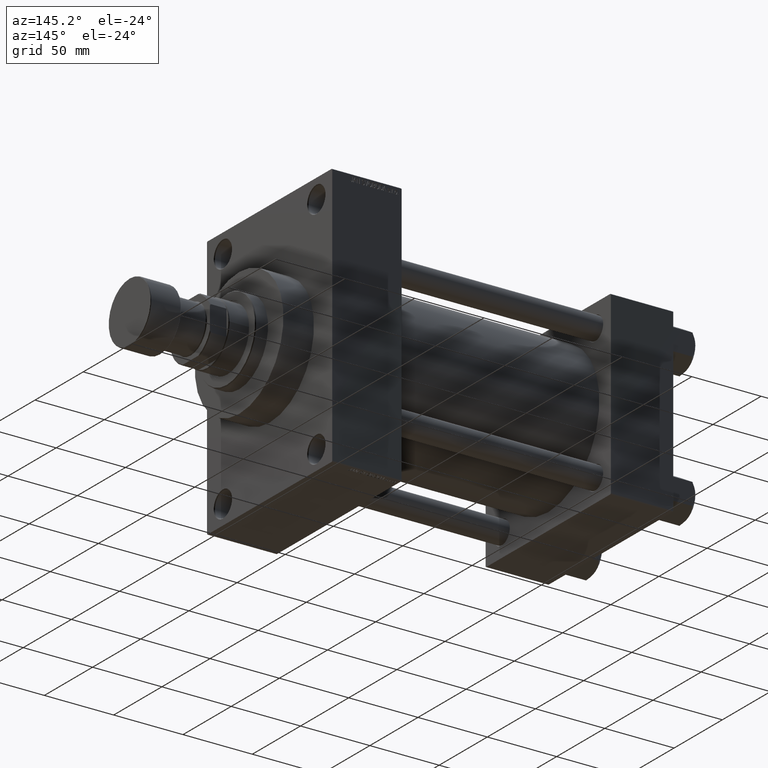
[diagram: clean part render]
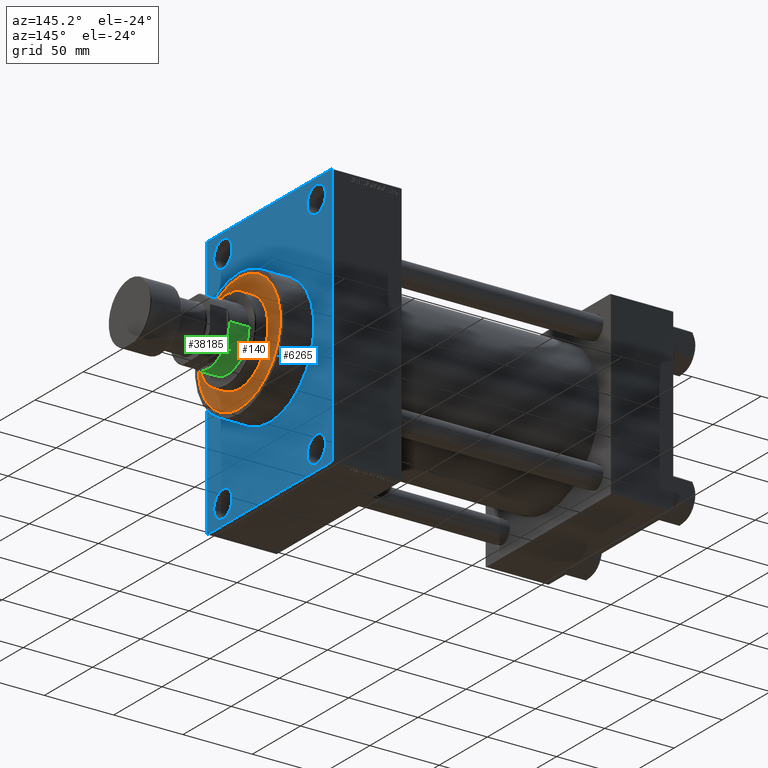
[diagram: same view with three faces highlighted in distinct colors, each labeled with its STEP entity id]
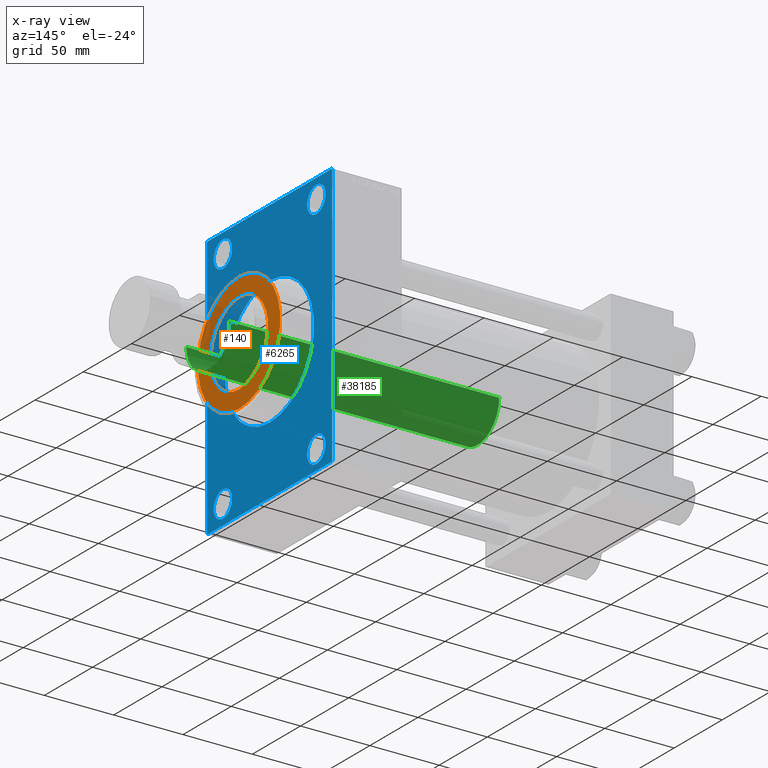
[diagram: x-ray of the same camera — body ghosted, the three highlighted faces saturated]
A machine part, auxiliary view with three faces highlighted in distinct colors.
The next image is the same camera in x-ray (body ghosted, the three faces saturated) — at least one of them is partly hidden behind the body in this view.
Their STEP definitions:

[orange] entity #140 — the highlighted planar face has unit normal (1, 0, 0).
#140 = ADVANCED_FACE ( 'NONE', ( #34800, #42825 ), #24335, .T. ) ;
#451 = CARTESIAN_POINT ( 'NONE',  ( 42.75000000000000000, 5.235365066354935472E-15, 43.25999999999999801 ) ) ;
#665 = EDGE_CURVE ( 'NONE', #20278, #44701, #26721, .T. ) ;
#2467 = VERTEX_POINT ( 'NONE', #41525 ) ;
#2649 = EDGE_LOOP ( 'NONE', ( #38880, #2697 ) ) ;
#2697 = ORIENTED_EDGE ( 'NONE', *, *, #13961, .F. ) ;
#2904 = ORIENTED_EDGE ( 'NONE', *, *, #665, .T. ) ;
#4879 = CIRCLE ( 'NONE', #14228, 42.75000000000000000 ) ;
#8645 = DIRECTION ( 'NONE',  ( 1.000000000000000000, 0.000000000000000000, 0.000000000000000000 ) ) ;
#8814 = CARTESIAN_POINT ( 'NONE',  ( 0.000000000000000000, 0.000000000000000000, 43.25999999999999801 ) ) ;
#9051 = CARTESIAN_POINT ( 'NONE',  ( -42.75000000000000000, 0.000000000000000000, 43.25999999999999801 ) ) ;
#9426 = AXIS2_PLACEMENT_3D ( 'NONE', #8814, #30731, #45554 ) ;
#10864 = DIRECTION ( 'NONE',  ( 1.000000000000000000, 0.000000000000000000, 0.000000000000000000 ) ) ;
#11820 = CARTESIAN_POINT ( 'NONE',  ( -30.00000000000000000, 0.000000000000000000, 43.25999999999999801 ) ) ;
#12683 = DIRECTION ( 'NONE',  ( 1.000000000000000000, 0.000000000000000000, -0.000000000000000000 ) ) ;
#13961 = EDGE_CURVE ( 'NONE', #2467, #24206, #30414, .T. ) ;
#14228 = AXIS2_PLACEMENT_3D ( 'NONE', #35799, #38473, #46018 ) ;
#14825 = EDGE_CURVE ( 'NONE', #24206, #2467, #47513, .T. ) ;
#18260 = EDGE_LOOP ( 'NONE', ( #2904, #19078 ) ) ;
#19078 = ORIENTED_EDGE ( 'NONE', *, *, #20217, .T. ) ;
#20217 = EDGE_CURVE ( 'NONE', #44701, #20278, #4879, .T. ) ;
#20278 = VERTEX_POINT ( 'NONE', #9051 ) ;
#20333 = DIRECTION ( 'NONE',  ( 0.000000000000000000, 0.000000000000000000, 1.000000000000000000 ) ) ;
#24206 = VERTEX_POINT ( 'NONE', #11820 ) ;
#24335 = PLANE ( 'NONE',  #42229 ) ;
#26721 = CIRCLE ( 'NONE', #27488, 42.75000000000000000 ) ;
#27488 = AXIS2_PLACEMENT_3D ( 'NONE', #34434, #20333, #8645 ) ;
#27762 = DIRECTION ( 'NONE',  ( 0.000000000000000000, 0.000000000000000000, 1.000000000000000000 ) ) ;
#29639 = AXIS2_PLACEMENT_3D ( 'NONE', #43480, #48063, #10864 ) ;
#30414 = CIRCLE ( 'NONE', #9426, 30.00000000000000000 ) ;
#30731 = DIRECTION ( 'NONE',  ( 0.000000000000000000, 0.000000000000000000, 1.000000000000000000 ) ) ;
#31166 = CARTESIAN_POINT ( 'NONE',  ( 0.000000000000000000, 0.000000000000000000, 43.25999999999999801 ) ) ;
#34434 = CARTESIAN_POINT ( 'NONE',  ( 0.000000000000000000, 0.000000000000000000, 43.25999999999999801 ) ) ;
#34800 = FACE_BOUND ( 'NONE', #2649, .T. ) ;
#35799 = CARTESIAN_POINT ( 'NONE',  ( 0.000000000000000000, 0.000000000000000000, 43.25999999999999801 ) ) ;
#38473 = DIRECTION ( 'NONE',  ( 0.000000000000000000, 0.000000000000000000, 1.000000000000000000 ) ) ;
#38880 = ORIENTED_EDGE ( 'NONE', *, *, #14825, .F. ) ;
#41525 = CARTESIAN_POINT ( 'NONE',  ( 30.00000000000000000, 3.673940397442059178E-15, 43.25999999999999801 ) ) ;
#42229 = AXIS2_PLACEMENT_3D ( 'NONE', #31166, #27762, #12683 ) ;
#42825 = FACE_OUTER_BOUND ( 'NONE', #18260, .T. ) ;
#43480 = CARTESIAN_POINT ( 'NONE',  ( 0.000000000000000000, 0.000000000000000000, 43.25999999999999801 ) ) ;
#44701 = VERTEX_POINT ( 'NONE', #451 ) ;
#45554 = DIRECTION ( 'NONE',  ( 1.000000000000000000, 0.000000000000000000, 0.000000000000000000 ) ) ;
#46018 = DIRECTION ( 'NONE',  ( 1.000000000000000000, 0.000000000000000000, 0.000000000000000000 ) ) ;
#47513 = CIRCLE ( 'NONE', #29639, 30.00000000000000000 ) ;
#48063 = DIRECTION ( 'NONE',  ( 0.000000000000000000, 0.000000000000000000, 1.000000000000000000 ) ) ;

[blue] entity #6265 — the highlighted planar face has unit normal (-1, 0, 0).
#283 = CIRCLE ( 'NONE', #34439, 46.00000000000000000 ) ;
#961 = DIRECTION ( 'NONE',  ( -1.000000000000000000, -0.000000000000000000, -0.000000000000000000 ) ) ;
#1036 = LINE ( 'NONE', #8320, #22680 ) ;
#1124 = AXIS2_PLACEMENT_3D ( 'NONE', #15366, #14883, #23380 ) ;
#1202 = VERTEX_POINT ( 'NONE', #1255 ) ;
#1252 = ORIENTED_EDGE ( 'NONE', *, *, #33177, .T. ) ;
#1255 = CARTESIAN_POINT ( 'NONE',  ( 246.0000000000000000, 48.50000000000000000, -90.49999999999998579 ) ) ;
#1751 = CARTESIAN_POINT ( 'NONE',  ( 246.0000000000000000, 48.50000000000000000, 81.00000000000000000 ) ) ;
#1987 = VERTEX_POINT ( 'NONE', #38697 ) ;
#2134 = CARTESIAN_POINT ( 'NONE',  ( 246.0000000000000000, -48.50000000000000000, 81.00000000000000000 ) ) ;
#2202 = LINE ( 'NONE', #46454, #20370 ) ;
#2629 = CIRCLE ( 'NONE', #9599, 46.00000000000000000 ) ;
#3124 = ORIENTED_EDGE ( 'NONE', *, *, #20820, .T. ) ;
#3354 = ORIENTED_EDGE ( 'NONE', *, *, #31611, .T. ) ;
#3499 = CARTESIAN_POINT ( 'NONE',  ( 246.0000000000000000, -65.00000000000000000, 94.49999999999998579 ) ) ;
#3521 = VERTEX_POINT ( 'NONE', #36974 ) ;
#4153 = DIRECTION ( 'NONE',  ( 1.000000000000000000, 0.000000000000000000, 0.000000000000000000 ) ) ;
#4184 = ORIENTED_EDGE ( 'NONE', *, *, #17606, .T. ) ;
#4714 = VERTEX_POINT ( 'NONE', #44715 ) ;
#4846 = EDGE_LOOP ( 'NONE', ( #5687, #33379 ) ) ;
#4852 = EDGE_LOOP ( 'NONE', ( #24113, #30144 ) ) ;
#4954 = EDGE_CURVE ( 'NONE', #3521, #10724, #10608, .T. ) ;
#5286 = VERTEX_POINT ( 'NONE', #3499 ) ;
#5665 = DIRECTION ( 'NONE',  ( -0.000000000000000000, 0.000000000000000000, 1.000000000000000000 ) ) ;
#5687 = ORIENTED_EDGE ( 'NONE', *, *, #14985, .T. ) ;
#6265 = ADVANCED_FACE ( 'NONE', ( #8576, #16143, #42649, #23917, #9311, #42887 ), #38730, .F. ) ;
#7327 = DIRECTION ( 'NONE',  ( 0.000000000000000000, 0.000000000000000000, -1.000000000000000000 ) ) ;
#7380 = DIRECTION ( 'NONE',  ( 0.000000000000000000, 0.000000000000000000, -1.000000000000000000 ) ) ;
#7525 = CARTESIAN_POINT ( 'NONE',  ( 246.0000000000000000, -48.50000000000000000, -81.00000000000000000 ) ) ;
#7556 = CARTESIAN_POINT ( 'NONE',  ( 246.0000000000000000, 65.00000000000000000, 95.00000000000000000 ) ) ;
#7689 = VECTOR ( 'NONE', #32741, 1000.000000000000000 ) ;
#7916 = DIRECTION ( 'NONE',  ( 0.000000000000000000, 0.000000000000000000, 1.000000000000000000 ) ) ;
#8048 = CARTESIAN_POINT ( 'NONE',  ( 246.0000000000000000, -48.50000000000000000, -90.49999999999998579 ) ) ;
#8167 = CARTESIAN_POINT ( 'NONE',  ( 246.0000000000000000, -65.00000000000000000, 94.49999999999998579 ) ) ;
#8297 = CARTESIAN_POINT ( 'NONE',  ( 246.0000000000000000, 48.50000000000000000, 90.49999999999998579 ) ) ;
#8320 = CARTESIAN_POINT ( 'NONE',  ( 246.0000000000000000, 65.00000000000000000, -94.49999999999997158 ) ) ;
#8576 = FACE_BOUND ( 'NONE', #4852, .T. ) ;
#8697 = CARTESIAN_POINT ( 'NONE',  ( 246.0000000000000000, -48.50000000000000000, 90.49999999999998579 ) ) ;
#9311 = FACE_BOUND ( 'NONE', #43093, .T. ) ;
#9419 = DIRECTION ( 'NONE',  ( 0.000000000000000000, 0.000000000000000000, 1.000000000000000000 ) ) ;
#9599 = AXIS2_PLACEMENT_3D ( 'NONE', #44298, #4153, #7327 ) ;
#10608 = LINE ( 'NONE', #40759, #7689 ) ;
#10724 = VERTEX_POINT ( 'NONE', #15077 ) ;
#11837 = DIRECTION ( 'NONE',  ( -1.000000000000000000, -0.000000000000000000, -0.000000000000000000 ) ) ;
#12138 = CARTESIAN_POINT ( 'NONE',  ( 246.0000000000000000, 65.00000000000000000, 95.00000000000000000 ) ) ;
#12300 = DIRECTION ( 'NONE',  ( 0.000000000000000000, -0.7071067811865279218, 0.7071067811865672237 ) ) ;
#12309 = DIRECTION ( 'NONE',  ( -1.000000000000000000, -0.000000000000000000, -0.000000000000000000 ) ) ;
#12454 = ORIENTED_EDGE ( 'NONE', *, *, #16590, .F. ) ;
#12470 = DIRECTION ( 'NONE',  ( -1.000000000000000000, -0.000000000000000000, -0.000000000000000000 ) ) ;
#12693 = VERTEX_POINT ( 'NONE', #46861 ) ;
#13078 = EDGE_CURVE ( 'NONE', #45821, #46006, #29603, .T. ) ;
#13401 = CARTESIAN_POINT ( 'NONE',  ( 246.0000000000000000, 64.50000000000000000, 95.00000000000000000 ) ) ;
#13988 = CARTESIAN_POINT ( 'NONE',  ( 246.0000000000000000, 64.49999999999997158, -95.00000000000002842 ) ) ;
#14185 = ORIENTED_EDGE ( 'NONE', *, *, #37551, .F. ) ;
#14456 = DIRECTION ( 'NONE',  ( 0.000000000000000000, 0.000000000000000000, 1.000000000000000000 ) ) ;
#14836 = CARTESIAN_POINT ( 'NONE',  ( 246.0000000000000000, 48.50000000000000000, 71.50000000000002842 ) ) ;
#14883 = DIRECTION ( 'NONE',  ( -1.000000000000000000, -0.000000000000000000, -0.000000000000000000 ) ) ;
#14985 = EDGE_CURVE ( 'NONE', #1202, #19517, #18811, .T. ) ;
#15077 = CARTESIAN_POINT ( 'NONE',  ( 246.0000000000000000, -64.49999999999994316, -95.00000000000002842 ) ) ;
#15260 = CARTESIAN_POINT ( 'NONE',  ( 246.0000000000000000, -48.50000000000000000, 81.00000000000000000 ) ) ;
#15366 = CARTESIAN_POINT ( 'NONE',  ( 246.0000000000000000, 48.50000000000000000, -81.00000000000000000 ) ) ;
#15431 = ORIENTED_EDGE ( 'NONE', *, *, #16249, .T. ) ;
#15649 = AXIS2_PLACEMENT_3D ( 'NONE', #1751, #12470, #42132 ) ;
#15852 = VERTEX_POINT ( 'NONE', #28601 ) ;
#16072 = CARTESIAN_POINT ( 'NONE',  ( 246.0000000000000000, 65.00000000000000000, -94.49999999999997158 ) ) ;
#16143 = FACE_BOUND ( 'NONE', #40542, .T. ) ;
#16249 = EDGE_CURVE ( 'NONE', #24536, #15852, #26074, .T. ) ;
#16517 = AXIS2_PLACEMENT_3D ( 'NONE', #37915, #961, #42306 ) ;
#16590 = EDGE_CURVE ( 'NONE', #23016, #10724, #30919, .T. ) ;
#16761 = AXIS2_PLACEMENT_3D ( 'NONE', #2134, #24510, #9419 ) ;
#17038 = DIRECTION ( 'NONE',  ( 0.000000000000000000, 0.000000000000000000, -1.000000000000000000 ) ) ;
#17104 = EDGE_CURVE ( 'NONE', #15852, #5286, #34185, .T. ) ;
#17606 = EDGE_CURVE ( 'NONE', #33676, #47207, #29776, .T. ) ;
#18523 = DIRECTION ( 'NONE',  ( 0.000000000000000000, 0.000000000000000000, -1.000000000000000000 ) ) ;
#18811 = CIRCLE ( 'NONE', #23492, 9.499999999999980460 ) ;
#19371 = EDGE_LOOP ( 'NONE', ( #38997, #19811 ) ) ;
#19486 = DIRECTION ( 'NONE',  ( 0.000000000000000000, -1.000000000000000000, 0.000000000000000000 ) ) ;
#19517 = VERTEX_POINT ( 'NONE', #29167 ) ;
#19811 = ORIENTED_EDGE ( 'NONE', *, *, #13078, .T. ) ;
#20370 = VECTOR ( 'NONE', #17038, 1000.000000000000000 ) ;
#20680 = AXIS2_PLACEMENT_3D ( 'NONE', #29753, #32928, #14456 ) ;
#20820 = EDGE_CURVE ( 'NONE', #4714, #24536, #27138, .T. ) ;
#21441 = VERTEX_POINT ( 'NONE', #16072 ) ;
#21444 = CIRCLE ( 'NONE', #20680, 9.499999999999980460 ) ;
#21916 = ORIENTED_EDGE ( 'NONE', *, *, #17104, .T. ) ;
#21946 = VERTEX_POINT ( 'NONE', #8697 ) ;
#22531 = CARTESIAN_POINT ( 'NONE',  ( 246.0000000000000000, 48.50000000000000000, -81.00000000000000000 ) ) ;
#22680 = VECTOR ( 'NONE', #23171, 1000.000000000000000 ) ;
#22720 = VERTEX_POINT ( 'NONE', #22765 ) ;
#22765 = CARTESIAN_POINT ( 'NONE',  ( 246.0000000000000000, -48.50000000000000000, 71.50000000000002842 ) ) ;
#23016 = VERTEX_POINT ( 'NONE', #13988 ) ;
#23171 = DIRECTION ( 'NONE',  ( -0.000000000000000000, 0.7071067811865279218, 0.7071067811865672237 ) ) ;
#23380 = DIRECTION ( 'NONE',  ( 0.000000000000000000, 0.000000000000000000, 1.000000000000000000 ) ) ;
#23432 = CARTESIAN_POINT ( 'NONE',  ( 246.0000000000000000, 0.000000000000000000, 0.000000000000000000 ) ) ;
#23492 = AXIS2_PLACEMENT_3D ( 'NONE', #22531, #12309, #7916 ) ;
#23917 = FACE_BOUND ( 'NONE', #19371, .T. ) ;
#24113 = ORIENTED_EDGE ( 'NONE', *, *, #42160, .T. ) ;
#24149 = DIRECTION ( 'NONE',  ( -1.000000000000000000, 0.000000000000000000, -0.000000000000000000 ) ) ;
#24339 = EDGE_CURVE ( 'NONE', #19517, #1202, #25998, .T. ) ;
#24510 = DIRECTION ( 'NONE',  ( -1.000000000000000000, -0.000000000000000000, -0.000000000000000000 ) ) ;
#24536 = VERTEX_POINT ( 'NONE', #13401 ) ;
#24828 = AXIS2_PLACEMENT_3D ( 'NONE', #23432, #24149, #5665 ) ;
#25392 = ORIENTED_EDGE ( 'NONE', *, *, #4954, .T. ) ;
#25998 = CIRCLE ( 'NONE', #1124, 9.499999999999980460 ) ;
#26074 = LINE ( 'NONE', #12138, #28197 ) ;
#27138 = LINE ( 'NONE', #30789, #31312 ) ;
#27171 = DIRECTION ( 'NONE',  ( 0.000000000000000000, 0.000000000000000000, 1.000000000000000000 ) ) ;
#27384 = CIRCLE ( 'NONE', #16517, 9.499999999999980460 ) ;
#27388 = VECTOR ( 'NONE', #19486, 1000.000000000000000 ) ;
#28197 = VECTOR ( 'NONE', #42286, 1000.000000000000000 ) ;
#28398 = CIRCLE ( 'NONE', #16761, 9.499999999999980460 ) ;
#28601 = CARTESIAN_POINT ( 'NONE',  ( 246.0000000000000000, -64.50000000000002842, 94.99999999999998579 ) ) ;
#29167 = CARTESIAN_POINT ( 'NONE',  ( 246.0000000000000000, 48.50000000000000000, -71.50000000000002842 ) ) ;
#29440 = EDGE_CURVE ( 'NONE', #4714, #21441, #37225, .T. ) ;
#29603 = CIRCLE ( 'NONE', #15649, 9.499999999999980460 ) ;
#29753 = CARTESIAN_POINT ( 'NONE',  ( 246.0000000000000000, 48.50000000000000000, 81.00000000000000000 ) ) ;
#29776 = CIRCLE ( 'NONE', #35995, 9.499999999999980460 ) ;
#30144 = ORIENTED_EDGE ( 'NONE', *, *, #46515, .T. ) ;
#30496 = EDGE_CURVE ( 'NONE', #5286, #3521, #2202, .T. ) ;
#30789 = CARTESIAN_POINT ( 'NONE',  ( 246.0000000000000000, 64.50000000000000000, 95.00000000000000000 ) ) ;
#30919 = LINE ( 'NONE', #34301, #27388 ) ;
#31312 = VECTOR ( 'NONE', #12300, 1000.000000000000000 ) ;
#31611 = EDGE_CURVE ( 'NONE', #47207, #33676, #27384, .T. ) ;
#32145 = ORIENTED_EDGE ( 'NONE', *, *, #30496, .T. ) ;
#32741 = DIRECTION ( 'NONE',  ( 0.000000000000000000, 0.7071067811865769936, -0.7071067811865181518 ) ) ;
#32928 = DIRECTION ( 'NONE',  ( -1.000000000000000000, -0.000000000000000000, -0.000000000000000000 ) ) ;
#33177 = EDGE_CURVE ( 'NONE', #23016, #21441, #1036, .T. ) ;
#33379 = ORIENTED_EDGE ( 'NONE', *, *, #24339, .T. ) ;
#33676 = VERTEX_POINT ( 'NONE', #8048 ) ;
#33951 = CIRCLE ( 'NONE', #37075, 9.499999999999980460 ) ;
#34185 = LINE ( 'NONE', #8167, #44533 ) ;
#34301 = CARTESIAN_POINT ( 'NONE',  ( 246.0000000000000000, 65.00000000000000000, -95.00000000000002842 ) ) ;
#34439 = AXIS2_PLACEMENT_3D ( 'NONE', #37755, #44129, #7380 ) ;
#35995 = AXIS2_PLACEMENT_3D ( 'NONE', #7525, #45213, #37669 ) ;
#36974 = CARTESIAN_POINT ( 'NONE',  ( 246.0000000000000000, -65.00000000000000000, -94.50000000000001421 ) ) ;
#37075 = AXIS2_PLACEMENT_3D ( 'NONE', #15260, #11837, #27171 ) ;
#37225 = LINE ( 'NONE', #7556, #38955 ) ;
#37354 = DIRECTION ( 'NONE',  ( -0.000000000000000000, -0.7071067811865279218, -0.7071067811865671127 ) ) ;
#37551 = EDGE_CURVE ( 'NONE', #12693, #1987, #283, .T. ) ;
#37669 = DIRECTION ( 'NONE',  ( 0.000000000000000000, 0.000000000000000000, 1.000000000000000000 ) ) ;
#37755 = CARTESIAN_POINT ( 'NONE',  ( 246.0000000000000000, 0.000000000000000000, 0.000000000000000000 ) ) ;
#37915 = CARTESIAN_POINT ( 'NONE',  ( 246.0000000000000000, -48.50000000000000000, -81.00000000000000000 ) ) ;
#38023 = EDGE_CURVE ( 'NONE', #1987, #12693, #2629, .T. ) ;
#38697 = CARTESIAN_POINT ( 'NONE',  ( 246.0000000000000000, 5.633375276077824704E-15, -46.00000000000000000 ) ) ;
#38730 = PLANE ( 'NONE',  #24828 ) ;
#38955 = VECTOR ( 'NONE', #18523, 1000.000000000000000 ) ;
#38997 = ORIENTED_EDGE ( 'NONE', *, *, #43361, .T. ) ;
#40542 = EDGE_LOOP ( 'NONE', ( #4184, #3354 ) ) ;
#40759 = CARTESIAN_POINT ( 'NONE',  ( 246.0000000000000000, -64.49999999999994316, -95.00000000000002842 ) ) ;
#40930 = ORIENTED_EDGE ( 'NONE', *, *, #38023, .F. ) ;
#42059 = CARTESIAN_POINT ( 'NONE',  ( 246.0000000000000000, -48.50000000000000000, -71.50000000000002842 ) ) ;
#42132 = DIRECTION ( 'NONE',  ( 0.000000000000000000, 0.000000000000000000, 1.000000000000000000 ) ) ;
#42160 = EDGE_CURVE ( 'NONE', #22720, #21946, #28398, .T. ) ;
#42286 = DIRECTION ( 'NONE',  ( 0.000000000000000000, -1.000000000000000000, -1.067522139062650425E-16 ) ) ;
#42306 = DIRECTION ( 'NONE',  ( 0.000000000000000000, 0.000000000000000000, 1.000000000000000000 ) ) ;
#42649 = FACE_BOUND ( 'NONE', #4846, .T. ) ;
#42843 = EDGE_LOOP ( 'NONE', ( #32145, #25392, #12454, #1252, #44150, #3124, #15431, #21916 ) ) ;
#42887 = FACE_OUTER_BOUND ( 'NONE', #42843, .T. ) ;
#43093 = EDGE_LOOP ( 'NONE', ( #14185, #40930 ) ) ;
#43361 = EDGE_CURVE ( 'NONE', #46006, #45821, #21444, .T. ) ;
#44129 = DIRECTION ( 'NONE',  ( 1.000000000000000000, 0.000000000000000000, 0.000000000000000000 ) ) ;
#44150 = ORIENTED_EDGE ( 'NONE', *, *, #29440, .F. ) ;
#44298 = CARTESIAN_POINT ( 'NONE',  ( 246.0000000000000000, 0.000000000000000000, 0.000000000000000000 ) ) ;
#44533 = VECTOR ( 'NONE', #37354, 1000.000000000000000 ) ;
#44715 = CARTESIAN_POINT ( 'NONE',  ( 246.0000000000000000, 65.00000000000000000, 94.49999999999997158 ) ) ;
#45213 = DIRECTION ( 'NONE',  ( -1.000000000000000000, -0.000000000000000000, -0.000000000000000000 ) ) ;
#45821 = VERTEX_POINT ( 'NONE', #8297 ) ;
#46006 = VERTEX_POINT ( 'NONE', #14836 ) ;
#46454 = CARTESIAN_POINT ( 'NONE',  ( 246.0000000000000000, -65.00000000000000000, 94.99999999999998579 ) ) ;
#46515 = EDGE_CURVE ( 'NONE', #21946, #22720, #33951, .T. ) ;
#46861 = CARTESIAN_POINT ( 'NONE',  ( 246.0000000000000000, 0.000000000000000000, 46.00000000000000000 ) ) ;
#47207 = VERTEX_POINT ( 'NONE', #42059 ) ;

[green] entity #38185 — the highlighted cylindrical surface (partial cylindrical patch) has radius 22.5 mm, axis along (-1, 0, 0).
#3207 = LINE ( 'NONE', #25578, #19873 ) ;
#5808 = VERTEX_POINT ( 'NONE', #29185 ) ;
#6733 = FACE_OUTER_BOUND ( 'NONE', #43981, .T. ) ;
#6801 = CIRCLE ( 'NONE', #37064, 22.50000000000000355 ) ;
#8314 = VECTOR ( 'NONE', #35610, 1000.000000000000000 ) ;
#8678 = VERTEX_POINT ( 'NONE', #48064 ) ;
#9743 = VERTEX_POINT ( 'NONE', #23493 ) ;
#9919 = ORIENTED_EDGE ( 'NONE', *, *, #29190, .T. ) ;
#13236 = ORIENTED_EDGE ( 'NONE', *, *, #28023, .T. ) ;
#13991 = DIRECTION ( 'NONE',  ( 1.000000000000000000, 0.000000000000000000, 0.000000000000000000 ) ) ;
#14039 = DIRECTION ( 'NONE',  ( -1.000000000000000000, 0.000000000000000000, 0.000000000000000000 ) ) ;
#14517 = CARTESIAN_POINT ( 'NONE',  ( 0.000000000000000000, 0.000000000000000000, 246.0000000000000000 ) ) ;
#14880 = CIRCLE ( 'NONE', #42063, 22.50000000000000355 ) ;
#17641 = CARTESIAN_POINT ( 'NONE',  ( 0.000000000000000000, 0.000000000000000000, 51.00000000000000000 ) ) ;
#17927 = DIRECTION ( 'NONE',  ( -0.000000000000000000, -0.000000000000000000, -1.000000000000000000 ) ) ;
#18688 = CARTESIAN_POINT ( 'NONE',  ( -22.50000000000000355, 0.000000000000000000, 245.5000000000000000 ) ) ;
#19627 = VERTEX_POINT ( 'NONE', #18688 ) ;
#19873 = VECTOR ( 'NONE', #37648, 1000.000000000000000 ) ;
#20789 = CARTESIAN_POINT ( 'NONE',  ( 22.50000000000000355, 2.755455298081545172E-15, 246.0000000000000000 ) ) ;
#23493 = CARTESIAN_POINT ( 'NONE',  ( -22.50000000000000355, 0.000000000000000000, 51.00000000000000000 ) ) ;
#24742 = CYLINDRICAL_SURFACE ( 'NONE', #37568, 22.50000000000000355 ) ;
#25578 = CARTESIAN_POINT ( 'NONE',  ( -22.50000000000000355, 0.000000000000000000, 246.0000000000000000 ) ) ;
#26838 = DIRECTION ( 'NONE',  ( 0.000000000000000000, 0.000000000000000000, -1.000000000000000000 ) ) ;
#27580 = ORIENTED_EDGE ( 'NONE', *, *, #27751, .T. ) ;
#27751 = EDGE_CURVE ( 'NONE', #8678, #9743, #6801, .T. ) ;
#28023 = EDGE_CURVE ( 'NONE', #5808, #8678, #39485, .T. ) ;
#29185 = CARTESIAN_POINT ( 'NONE',  ( 22.50000000000000355, 2.755455298081545172E-15, 245.5000000000000000 ) ) ;
#29190 = EDGE_CURVE ( 'NONE', #19627, #5808, #14880, .T. ) ;
#31201 = CARTESIAN_POINT ( 'NONE',  ( 0.000000000000000000, 0.000000000000000000, 245.5000000000000000 ) ) ;
#32475 = DIRECTION ( 'NONE',  ( 0.000000000000000000, 0.000000000000000000, 1.000000000000000000 ) ) ;
#35610 = DIRECTION ( 'NONE',  ( -0.000000000000000000, -0.000000000000000000, -1.000000000000000000 ) ) ;
#37064 = AXIS2_PLACEMENT_3D ( 'NONE', #17641, #32475, #13991 ) ;
#37568 = AXIS2_PLACEMENT_3D ( 'NONE', #14517, #17927, #14039 ) ;
#37648 = DIRECTION ( 'NONE',  ( -0.000000000000000000, -0.000000000000000000, -1.000000000000000000 ) ) ;
#37989 = DIRECTION ( 'NONE',  ( 1.000000000000000000, 0.000000000000000000, 0.000000000000000000 ) ) ;
#38185 = ADVANCED_FACE ( 'NONE', ( #6733 ), #24742, .T. ) ;
#39485 = LINE ( 'NONE', #20789, #8314 ) ;
#42063 = AXIS2_PLACEMENT_3D ( 'NONE', #31201, #26838, #37989 ) ;
#43491 = EDGE_CURVE ( 'NONE', #19627, #9743, #3207, .T. ) ;
#43981 = EDGE_LOOP ( 'NONE', ( #9919, #13236, #27580, #45922 ) ) ;
#45922 = ORIENTED_EDGE ( 'NONE', *, *, #43491, .F. ) ;
#48064 = CARTESIAN_POINT ( 'NONE',  ( 22.50000000000000355, 2.755455298081545172E-15, 51.00000000000000000 ) ) ;